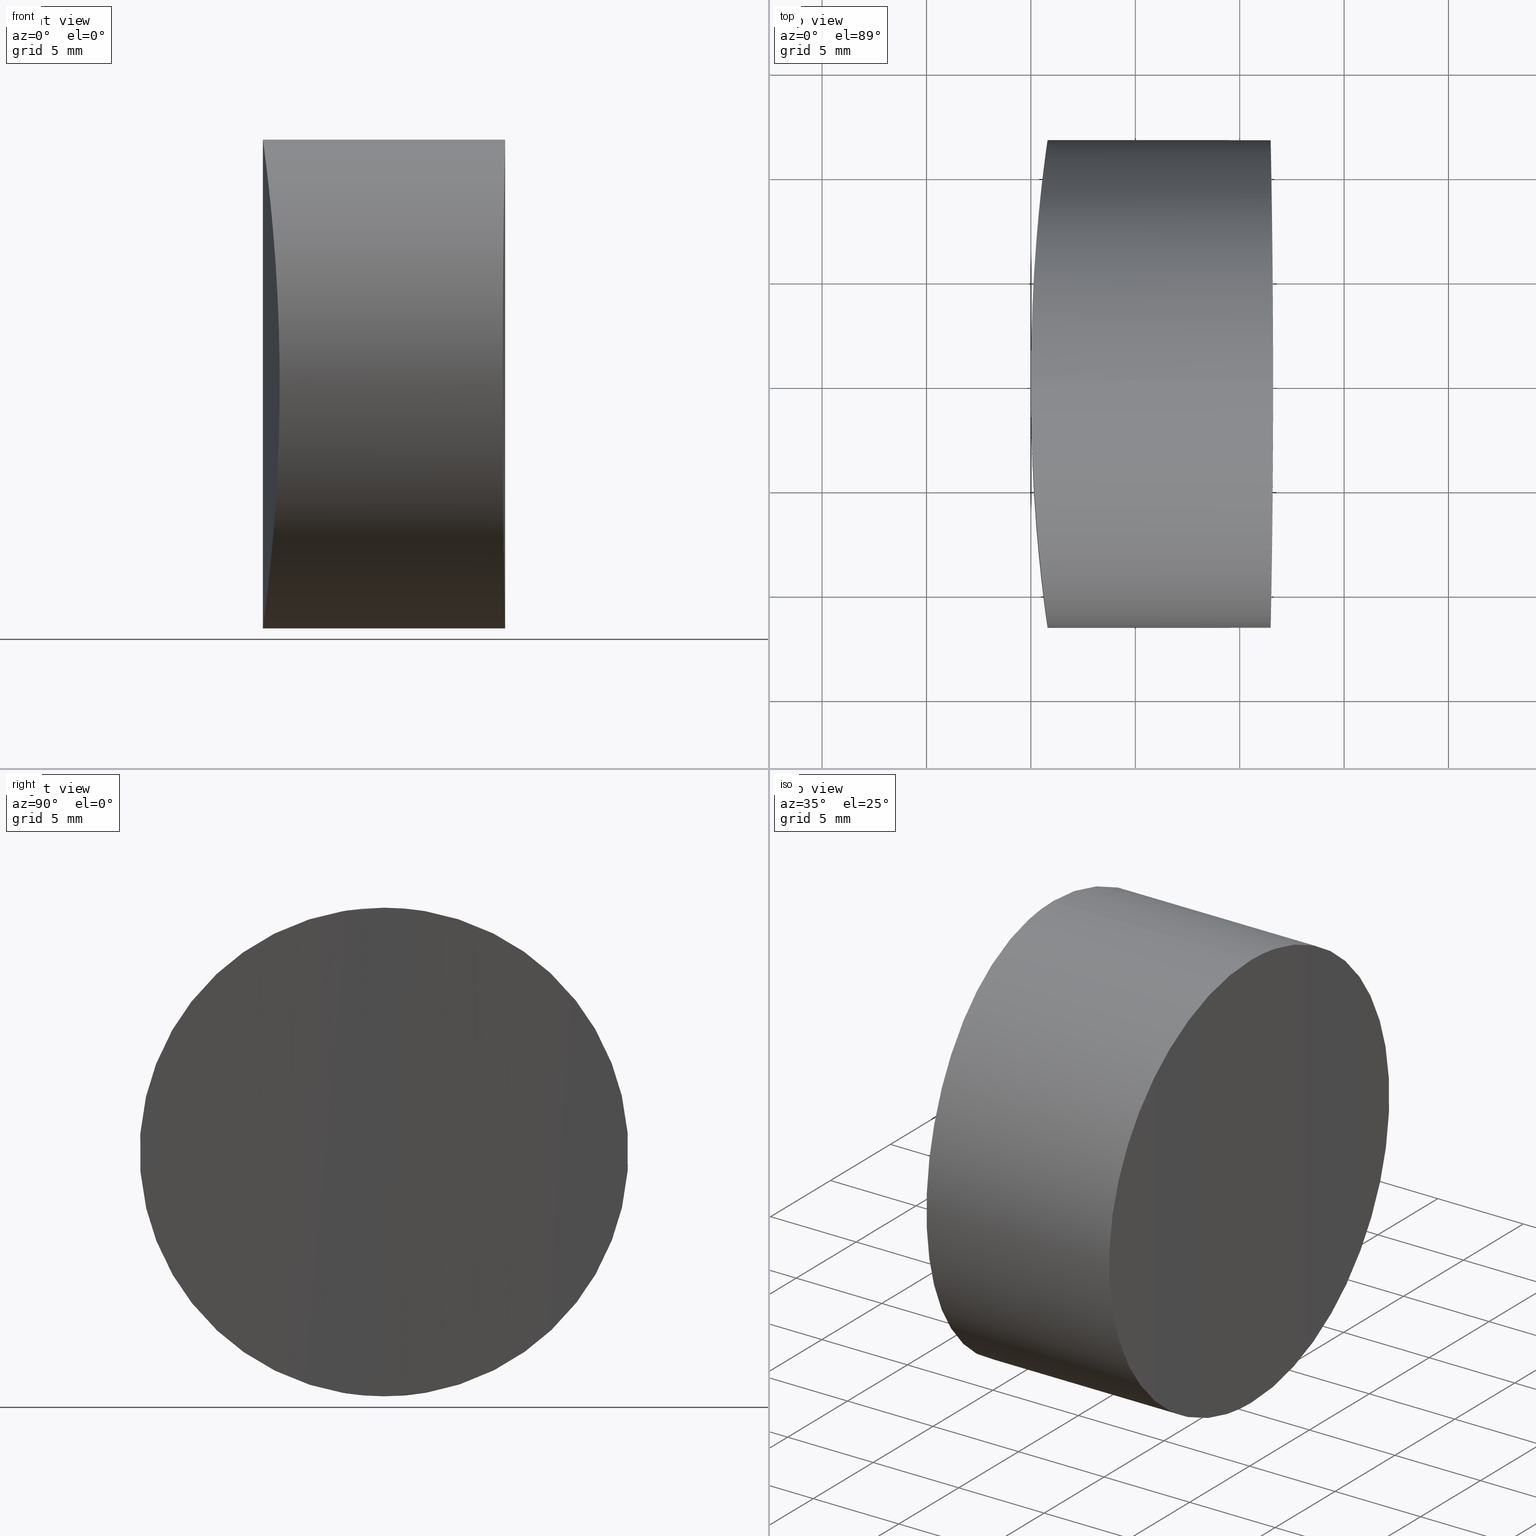
[diagram: canonical four-view strip — front | top / right | iso, engineering-drawing reading convention]
A machine part, canonical four-view strip (front | top / right | iso — engineering-drawing reading convention). The complete STEP part file that produces these views, byte-faithful:
ISO-10303-21;
HEADER;
FILE_DESCRIPTION (( 'STEP AP203' ),
    '1' );
FILE_NAME ('159018.STEP',
    '2024-12-10T03:13:30',
    ( '' ),
    ( '' ),
    'SwSTEP 2.0',
    'SolidWorks 2020',
    '' );
FILE_SCHEMA (( 'CONFIG_CONTROL_DESIGN' ));
ENDSEC;

DATA;
#1 = CARTESIAN_POINT ( 'NONE',  ( 11.48889508006092974, 11.30908264685334608, 14.72356528603690506 ) ) ;
#2 = CARTESIAN_POINT ( 'NONE',  ( 0.2969157019140344356, 7.122642959282647013, 20.99010349374455231 ) ) ;
#3 = PERSON ( 'δָ��', 'δָ��', 'δָ��', ('δָ��'), ('δָ��'), ('δָ��') ) ;
#4 = CARTESIAN_POINT ( 'NONE',  ( 11.54834514430092796, 7.716685844223316160, 2.897082641097291855 ) ) ;
#5 = AXIS2_PLACEMENT_3D ( 'NONE', #164, #112, #162 ) ;
#6 = CARTESIAN_POINT ( 'NONE',  ( 11.51078849114089842, -10.13498876620289124, 17.55819831774909190 ) ) ;
#7 = CARTESIAN_POINT ( 'NONE',  ( 11.59217540216426556, 3.023563350963979435, 0.3909168317189865016 ) ) ;
#8 = CALENDAR_DATE ( 2024, 10, 12 ) ;
#9 = CARTESIAN_POINT ( 'NONE',  ( 11.57054675410441469, -5.857263409342077232, 21.85708417673437864 ) ) ;
#10 = CARTESIAN_POINT ( 'NONE',  ( 0.000000000000000000, 0.000000000000000000, 23.39999999999999858 ) ) ;
#11 = CC_DESIGN_APPROVAL ( #47, ( #76 ) ) ;
#12 = APPROVAL ( #41, 'δָ��' ) ;
#13 = B_SPLINE_CURVE_WITH_KNOTS ( 'NONE', 3,
 ( #152, #341, #123, #171, #315, #59, #195, #25, #268, #169, #2, #239, #119, #144, #87, #228, #55, #201, #126, #174, #51, #311, #81, #282, #23, #177, #203, #288, #167, #280, #284, #30, #199, #337, #148, #309, #370, #237, #344, #91, #208, #364, #114, #48, #21, #141, #256, #261, #361, #143 ),
 .UNSPECIFIED., .F., .F.,
 ( 4, 2, 2, 2, 2, 2, 2, 2, 2, 2, 2, 2, 2, 2, 2, 2, 2, 2, 2, 2, 2, 2, 2, 2, 4 ),
 ( 0.01829874001183548829, 0.02058606737075608165, 0.02172973105021637485, 0.02287339472967667153, 0.02516072208859726489, 0.02630438576805756157, 0.02744804944751785825, 0.02973537680643844813, 0.03087904048589874134, 0.03202270416535903108, 0.03316636784481932776, 0.03431003152427961056, 0.03659735888320020392, 0.03888468624212078339, 0.04002834992158108007, 0.04117201360104136287, 0.04345934095996194235, 0.04460300463942222515, 0.04574666831888250795, 0.04803399567780308743, 0.04917765935726337023, 0.05032132303672366691, 0.05146498671618394971, 0.05260865039564424639, 0.05489597775456481199 ),
 .UNSPECIFIED. ) ;
#14 = CARTESIAN_POINT ( 'NONE',  ( -4.982711311605177194E-31, -5.239318916970031671E-46, -1.734723475976806306E-15 ) ) ;
#15 = VECTOR ( 'NONE', #63, 1000.000000000000000 ) ;
#16 = CC_DESIGN_PERSON_AND_ORGANIZATION_ASSIGNMENT ( #276, #179, ( #19 ) ) ;
#17 = DIRECTION ( 'NONE',  ( -1.000000000000000000, 0.000000000000000000, 0.000000000000000000 ) ) ;
#18 = ORIENTED_EDGE ( 'NONE', *, *, #196, .T. ) ;
#19 = PRODUCT_DEFINITION_FORMATION_WITH_SPECIFIED_SOURCE ( '�κ�', '', #105, .NOT_KNOWN. ) ;
#20 = FACE_OUTER_BOUND ( 'NONE', #188, .T. ) ;
#21 = CARTESIAN_POINT ( 'NONE',  ( 0.08287150945349634756, 3.779788279490086111, 0.6207537063316417303 ) ) ;
#22 = CARTESIAN_POINT ( 'NONE',  ( 11.60000000000016485, -7.957199002382834224E-15, 23.39999999999999858 ) ) ;
#23 = CARTESIAN_POINT ( 'NONE',  ( 0.8049714576929901666, 11.69997624845013462, 12.47382822473159258 ) ) ;
#24 = DIRECTION ( 'NONE',  ( -0.000000000000000000, -0.000000000000000000, -1.000000000000000000 ) ) ;
#25 = CARTESIAN_POINT ( 'NONE',  ( 0.1547565747887404419, 5.188473559564548587, 22.21460794716410803 ) ) ;
#26 =( GEOMETRIC_REPRESENTATION_CONTEXT ( 3 ) GLOBAL_UNCERTAINTY_ASSIGNED_CONTEXT ( ( #240 ) ) GLOBAL_UNIT_ASSIGNED_CONTEXT ( ( #331, #138, #191 ) ) REPRESENTATION_CONTEXT ( 'NONE', 'WORKASPACE' ) );
#27 = CARTESIAN_POINT ( 'NONE',  ( 11.55978960286003598, 6.810762556803639178, 2.178997594803219418 ) ) ;
#28 = CARTESIAN_POINT ( 'NONE',  ( 6.324512672832170006E-17, -0.7735007242164915198, -1.807003620809191543E-15 ) ) ;
#29 = PERSON_AND_ORGANIZATION ( #3, #252 ) ;
#30 = CARTESIAN_POINT ( 'NONE',  ( 0.6490255061940828352, 10.51469365711987791, 6.511697419970485790 ) ) ;
#31 = CARTESIAN_POINT ( 'NONE',  ( 11.55602995389305931, 7.120521181086075124, 2.408241686536841009 ) ) ;
#32 = CARTESIAN_POINT ( 'NONE',  ( 11.59392975387197566, 2.670271077491099820, 23.09772525857131953 ) ) ;
#33 = PERSON_AND_ORGANIZATION_ROLE ( 'design_supplier' ) ;
#34 = CARTESIAN_POINT ( 'NONE',  ( 11.59844573082671104, 1.532171443256347354, 0.07576365607338235442 ) ) ;
#35 = PERSON_AND_ORGANIZATION ( #3, #252 ) ;
#36 = CARTESIAN_POINT ( 'NONE',  ( 11.54445707153993794, -8.000400450507958894, 20.24570475478216736 ) ) ;
#37 = CARTESIAN_POINT ( 'NONE',  ( 11.60000000000020215, 0.7725389205760190281, -1.680513367352543706E-15 ) ) ;
#38 = DIRECTION ( 'NONE',  ( 1.000000000000000000, 0.000000000000000000, 0.000000000000000000 ) ) ;
#39 = CARTESIAN_POINT ( 'NONE',  ( 11.59844573082683539, -1.532171443256364229, 23.32423634392661427 ) ) ;
#40 = CARTESIAN_POINT ( 'NONE',  ( 11.57675890506411598, 5.183307414112395151, 22.19618068541164746 ) ) ;
#41 = APPROVAL_STATUS ( 'not_yet_approved' ) ;
#42 = CARTESIAN_POINT ( 'NONE',  ( 11.58784721816379459, -3.758206579550017690, 22.78662170139381971 ) ) ;
#43 = APPROVAL_PERSON_ORGANIZATION ( #271, #12, #102 ) ;
#44 = CARTESIAN_POINT ( 'NONE',  ( 0.6046922169477022546, -10.15550277636757137, 17.55996626465684685 ) ) ;
#45 = CYLINDRICAL_SURFACE ( 'NONE', #5, 11.70000000000000107 ) ;
#46 = VERTEX_POINT ( 'NONE', #234 ) ;
#47 = APPROVAL ( #264, 'δָ��' ) ;
#48 = CARTESIAN_POINT ( 'NONE',  ( 0.09957637364652298373, 4.138555815599445964, 0.7497807550455877212 ) ) ;
#49 = CC_DESIGN_SECURITY_CLASSIFICATION ( #76, ( #19 ) ) ;
#50 = FACE_OUTER_BOUND ( 'NONE', #163, .T. ) ;
#51 = CARTESIAN_POINT ( 'NONE',  ( 0.7213862518307621041, 11.07918525432890000, 15.47996509136043208 ) ) ;
#52 = CARTESIAN_POINT ( 'NONE',  ( 0.09899385815515494846, -4.126732457966788559, 0.7452340947286396622 ) ) ;
#53 = ORIENTED_EDGE ( 'NONE', *, *, #277, .F. ) ;
#54 = CARTESIAN_POINT ( 'NONE',  ( 0.01049551717967118700, -1.533902604541913295, 0.07594905271450159978 ) ) ;
#55 = CARTESIAN_POINT ( 'NONE',  ( 0.6029734264882017358, 10.13378123580967127, 17.56026148705359091 ) ) ;
#56 = CARTESIAN_POINT ( 'NONE',  ( 11.53661802630480082, 8.545704692924593004, 19.70040051057739916 ) ) ;
#57 = CARTESIAN_POINT ( 'NONE',  ( 0.3488080069896614677, -7.717827117987394736, 2.898112867211508181 ) ) ;
#58 = APPROVAL_STATUS ( 'not_yet_approved' ) ;
#59 = CARTESIAN_POINT ( 'NONE',  ( 0.08205682032936004178, 3.761488649776796755, 22.78551771964568928 ) ) ;
#60 = DESIGN_CONTEXT ( 'detailed design', #225, 'design' ) ;
#61 = CARTESIAN_POINT ( 'NONE',  ( 11.56679909336539502, 6.190252330602985076, 21.63572018492828875 ) ) ;
#62 = APPROVAL_ROLE ( '' ) ;
#63 = DIRECTION ( 'NONE',  ( -1.000000000000000000, 0.000000000000000000, 0.000000000000000000 ) ) ;
#64 = CARTESIAN_POINT ( 'NONE',  ( 11.60000000000021991, -0.7725384134044680495, -2.026102809832286805E-15 ) ) ;
#65 = PRODUCT_RELATED_PRODUCT_CATEGORY ( 'detail', '', ( #105 ) ) ;
#66 = CARTESIAN_POINT ( 'NONE',  ( 0.000000000000000000, 0.000000000000000000, 0.000000000000000000 ) ) ;
#67 = CARTESIAN_POINT ( 'NONE',  ( 11.48900865272862504, -11.30330480742386889, 14.74492850539805389 ) ) ;
#68 = CARTESIAN_POINT ( 'NONE',  ( 11.59844487777826494, -1.536650718441863628, 0.07577274146138250621 ) ) ;
#69 = CARTESIAN_POINT ( 'NONE',  ( 11.58533878050003274, -4.123348766008423816, 22.65604233339305296 ) ) ;
#70 = CARTESIAN_POINT ( 'NONE',  ( 11.58772550200146689, -3.776659304196815281, 0.6196961425283916691 ) ) ;
#71 = EDGE_CURVE ( 'NONE', #107, #313, #13, .T. ) ;
#72 = ORIENTED_EDGE ( 'NONE', *, *, #368, .F. ) ;
#73 = VECTOR ( 'NONE', #109, 1000.000000000000000 ) ;
#74 = APPROVAL_DATE_TIME ( #108, #47 ) ;
#75 = PRODUCT_DEFINITION_SHAPE ( 'NONE', 'NONE',  #247 ) ;
#76 = SECURITY_CLASSIFICATION ( '', '', #95 ) ;
#77 = CARTESIAN_POINT ( 'NONE',  ( 23.39999999999999858, -6.524362247380430940E-15, -1.734723475976807094E-15 ) ) ;
#78 = CARTESIAN_POINT ( 'NONE',  ( 0.7051499728978932735, -10.95475100229012178, 15.82677094144197305 ) ) ;
#79 = APPROVAL ( #58, 'δָ��' ) ;
#80 = DIRECTION ( 'NONE',  ( 0.000000000000000000, 0.000000000000000000, 1.000000000000000000 ) ) ;
#81 = CARTESIAN_POINT ( 'NONE',  ( 0.7636247004124844251, 11.39717575466077371, 14.37264079183626286 ) ) ;
#82 = CYLINDRICAL_SURFACE ( 'NONE', #193, 85.43000000000000682 ) ;
#83 = ORIENTED_EDGE ( 'NONE', *, *, #125, .F. ) ;
#84 = CARTESIAN_POINT ( 'NONE',  ( 0.7509120939584935650, -11.30263944536091358, 8.652569577926120914 ) ) ;
#85 = DIRECTION ( 'NONE',  ( -0.000000000000000000, -0.000000000000000000, -1.000000000000000000 ) ) ;
#86 = CARTESIAN_POINT ( 'NONE',  ( 0.7641371267976032611, -11.40097338447894693, 14.35577758986275221 ) ) ;
#87 = CARTESIAN_POINT ( 'NONE',  ( 0.5058729923670465256, 9.293165120871931251, 18.84967686803104314 ) ) ;
#88 = CARTESIAN_POINT ( 'NONE',  ( 11.48706353790698920, 11.40159643474238749, 14.35305552568090270 ) ) ;
#89 = FACE_OUTER_BOUND ( 'NONE', #333, .T. ) ;
#90 = COORDINATED_UNIVERSAL_TIME_OFFSET ( 8, 0, .AHEAD. ) ;
#91 = CARTESIAN_POINT ( 'NONE',  ( 0.2240722460501503310, 6.191715508670631252, 1.765193760489223829 ) ) ;
#92 = CC_DESIGN_APPROVAL ( #12, ( #19 ) ) ;
#93 = B_SPLINE_CURVE_WITH_KNOTS ( 'NONE', 3,
 ( #206, #28, #54, #338, #283, #146, #52, #257, #115, #263, #168, #57, #236, #310, #281, #176, #369, #290, #365, #231, #121, #84, #312, #170, #118, #233, #340, #86, #202, #314, #78, #303, #44, #304, #335, #332, #192, #194, #166, #111, #139, #278, #307, #254, #250, #249, #279, #165, #140, #255 ),
 .UNSPECIFIED., .F., .F.,
 ( 4, 2, 2, 2, 2, 2, 2, 2, 2, 2, 2, 2, 2, 2, 2, 2, 2, 2, 2, 2, 2, 2, 2, 2, 4 ),
 ( -0.01829849772484453546, -0.01601117036630202162, -0.01486750668703076643, -0.01372384300775950951, -0.01143651564921699913, -0.01029285196994574568, -0.009149188290674490492, -0.006861860932131988791, -0.005718197252860735338, -0.004574533573589481886, -0.003430869894318230168, -0.002287206215046980184, 1.211434955267209901E-07, 0.002287448502038033626, 0.003431112181309287079, 0.004574775860580544001, 0.006862103219123040498, 0.008005766898394290482, 0.009149430577665536996, 0.01143675793620802655, 0.01258042161547926960, 0.01372408529475051264, 0.01486774897402175916, 0.01601141265329300567, 0.01829874001183549176 ),
 .UNSPECIFIED. ) ;
#94 = CARTESIAN_POINT ( 'NONE',  ( 11.60000000000021103, -6.524362247379985233E-15, -1.754205247193224053E-15 ) ) ;
#95 = SECURITY_CLASSIFICATION_LEVEL ( 'unclassified' ) ;
#96 = CARTESIAN_POINT ( 'NONE',  ( 11.55978960286017099, -6.810762556803656942, 21.22100240519678138 ) ) ;
#97 = ADVANCED_FACE ( 'NONE', ( #258 ), #232, .T. ) ;
#98 = CARTESIAN_POINT ( 'NONE',  ( 11.52504475694595243, 9.291758020152153463, 18.82052155672731431 ) ) ;
#99 = APPLICATION_PROTOCOL_DEFINITION ( 'international standard', 'config_control_design', 1994, #204 ) ;
#100 = CARTESIAN_POINT ( 'NONE',  ( 11.52511386058626996, -9.294110420469229084, 18.84846486460835635 ) ) ;
#101 = CARTESIAN_POINT ( 'NONE',  ( 11.50431392046848167, 10.49618125319995166, 6.516693726865961267 ) ) ;
#102 = APPROVAL_ROLE ( '' ) ;
#103 = CARTESIAN_POINT ( 'NONE',  ( 11.49322400905037433, -11.08662113127333093, 7.941791750861715293 ) ) ;
#104 = CARTESIAN_POINT ( 'NONE',  ( 11.55596090888334793, -7.148465281526961590, 2.405889921153676614 ) ) ;
#105 = PRODUCT ( '159018', '159018', '', ( #347 ) ) ;
#106 = CALENDAR_DATE ( 2024, 10, 12 ) ;
#107 = VERTEX_POINT ( 'NONE', #216 ) ;
#108 = DATE_AND_TIME ( #161, #346 ) ;
#109 = DIRECTION ( 'NONE',  ( -1.000000000000000000, 0.000000000000000000, 0.000000000000000000 ) ) ;
#110 = VERTEX_POINT ( 'NONE', #186 ) ;
#111 = CARTESIAN_POINT ( 'NONE',  ( 0.2240617271662432297, -6.191570528692841968, 21.63489624173244508 ) ) ;
#112 = DIRECTION ( 'NONE',  ( -1.000000000000000000, 0.000000000000000000, 0.000000000000000000 ) ) ;
#113 = CARTESIAN_POINT ( 'NONE',  ( 11.58772550200129103, 3.776659304196797962, 22.78030385747160480 ) ) ;
#114 = CARTESIAN_POINT ( 'NONE',  ( 0.1365834048133584833, 4.841686277704874364, 1.041997385077902072 ) ) ;
#115 = CARTESIAN_POINT ( 'NONE',  ( 0.1988347925168873209, -5.859980309517195174, 1.544504016557944226 ) ) ;
#116 = LOCAL_TIME ( 11, 13, 30.00000000000000000, #218 ) ;
#117 = EDGE_LOOP ( 'NONE', ( #72, #319, #221, #53 ) ) ;
#118 = CARTESIAN_POINT ( 'NONE',  ( 0.8049758647438547410, -11.70000812424418868, 10.92663245149455342 ) ) ;
#119 = CARTESIAN_POINT ( 'NONE',  ( 0.3750549743893149546, 8.000906440676526898, 20.24520791035130074 ) ) ;
#120 = CARTESIAN_POINT ( 'NONE',  ( 11.48106894899203745, 11.70000020100234828, 10.92746441085048303 ) ) ;
#121 = CARTESIAN_POINT ( 'NONE',  ( 0.7214022135711677386, -11.07930720252659995, 7.920391221137811577 ) ) ;
#122 = PERSON_AND_ORGANIZATION ( #3, #252 ) ;
#123 = CARTESIAN_POINT ( 'NONE',  ( 0.01049497237357753694, 1.533863103208438883, 23.32405485431203473 ) ) ;
#124 = CARTESIAN_POINT ( 'NONE',  ( 11.51052687668431496, -10.15708367604227114, 5.842735755078348525 ) ) ;
#125 = EDGE_CURVE ( 'NONE', #46, #107, #295, .T. ) ;
#126 = CARTESIAN_POINT ( 'NONE',  ( 0.6673036899622041274, 10.65795045036725064, 16.54179947320250577 ) ) ;
#127 = CARTESIAN_POINT ( 'NONE',  ( 11.48714038383670832, 11.39772575531671706, 9.029731025579263104 ) ) ;
#128 = CARTESIAN_POINT ( 'NONE',  ( 23.39999999999999858, -7.957199002382834224E-15, 23.39999999999999858 ) ) ;
#129 = CARTESIAN_POINT ( 'NONE',  ( 11.58533878049994748, 4.123348766008413158, 0.7439576666069475097 ) ) ;
#130 = APPLICATION_PROTOCOL_DEFINITION ( 'international standard', 'config_control_design', 1994, #225 ) ;
#131 = CARTESIAN_POINT ( 'NONE',  ( 11.48106895716592035, -11.69999979899685627, 10.92745832252790272 ) ) ;
#132 = CARTESIAN_POINT ( 'NONE',  ( 11.57707555386763509, 5.185535602715203751, 1.183931573922345493 ) ) ;
#133 = PERSON_AND_ORGANIZATION_ROLE ( 'classification_officer' ) ;
#134 = B_SPLINE_CURVE_WITH_KNOTS ( 'NONE', 3,
 ( #94, #37, #34, #175, #7, #285, #129, #132, #243, #27, #31, #4, #246, #352, #184, #217, #153, #101, #327, #145, #262, #127, #367, #120, #149, #235, #88, #1, #238, #289, #241, #349, #205, #98, #209, #56, #320, #299, #61, #178, #40, #317, #113, #172, #32, #142, #227, #22 ),
 .UNSPECIFIED., .F., .F.,
 ( 4, 2, 2, 2, 2, 2, 2, 2, 2, 1, 2, 2, 2, 2, 2, 2, 2, 2, 2, 2, 2, 1, 2, 2, 4 ),
 ( 0.03655547232071186536, 0.03884019084067336786, 0.03998255010065411563, 0.04112490936063486341, 0.04340962788059635896, 0.04455198714057710674, 0.04569434640055786145, 0.04797906492051936395, 0.04912142418050011172, 0.05026378344048086644, 0.05140614270046160728, 0.05254850196044236199, 0.05483322048040385754, 0.05711793900036535310, 0.05826029826034609393, 0.05940265752032684171, 0.06168737604028833033, 0.06282973530026907116, 0.06397209456024981200, 0.06625681308021127980, 0.06739917234019202064, 0.06854153160017276147, 0.06968389086015350231, 0.07082625012013424315, 0.07311096864009572482 ),
 .UNSPECIFIED. ) ;
#135 = CC_DESIGN_DATE_AND_TIME_ASSIGNMENT ( #354, #151, ( #247 ) ) ;
#136 = CC_DESIGN_APPROVAL ( #79, ( #247 ) ) ;
#137 = EDGE_CURVE ( 'NONE', #46, #110, #353, .T. ) ;
#138 =( NAMED_UNIT ( * ) PLANE_ANGLE_UNIT ( ) SI_UNIT ( $, .RADIAN. ) );
#139 = CARTESIAN_POINT ( 'NONE',  ( 0.2005532909834797373, -5.860068956771623760, 21.83389294845257922 ) ) ;
#140 = CARTESIAN_POINT ( 'NONE',  ( 6.431474111115942763E-15, -0.7734806364466176865, 23.39999999999999503 ) ) ;
#141 = CARTESIAN_POINT ( 'NONE',  ( 0.05359046850530976847, 3.047595204440369798, 0.3974046633790014882 ) ) ;
#142 = CARTESIAN_POINT ( 'NONE',  ( 11.59844487777823652, 1.536650718441836094, 23.32422725853861323 ) ) ;
#143 = CARTESIAN_POINT ( 'NONE',  ( -4.982711311605177194E-31, -5.239318916970031671E-46, -1.734723475976806306E-15 ) ) ;
#144 = CARTESIAN_POINT ( 'NONE',  ( 0.4536722884883934159, 8.809184831426966511, 19.43747962970603993 ) ) ;
#145 = CARTESIAN_POINT ( 'NONE',  ( 11.49334572321051695, 11.08030443022354206, 7.923342363135714272 ) ) ;
#146 = CARTESIAN_POINT ( 'NONE',  ( 0.08206096595699850782, -3.761583598946705909, 0.6145141402618543580 ) ) ;
#147 = CALENDAR_DATE ( 2024, 10, 12 ) ;
#148 = CARTESIAN_POINT ( 'NONE',  ( 0.5062832646798305358, 9.290181178225719094, 4.577457851061286220 ) ) ;
#149 = CARTESIAN_POINT ( 'NONE',  ( 11.48106895716569298, 11.69999979899684206, 12.47254167747210296 ) ) ;
#150 = EDGE_CURVE ( 'NONE', #107, #313, #159, .T. ) ;
#151 = DATE_TIME_ROLE ( 'creation_date' ) ;
#152 = CARTESIAN_POINT ( 'NONE',  ( 6.477406527599691417E-15, -9.629649721936179265E-32, 23.39999999999999858 ) ) ;
#153 = CARTESIAN_POINT ( 'NONE',  ( 11.51078849114081137, 10.13498876620287525, 5.841801682250903127 ) ) ;
#154 = COORDINATED_UNIVERSAL_TIME_OFFSET ( 8, 0, .AHEAD. ) ;
#155 = CARTESIAN_POINT ( 'NONE',  ( 11.55602995389319787, -7.120521181086087559, 20.99175831346316201 ) ) ;
#156 = DIRECTION ( 'NONE',  ( -0.000000000000000000, -0.000000000000000000, -1.000000000000000000 ) ) ;
#157 = CARTESIAN_POINT ( 'NONE',  ( 11.48106894899226837, -11.70000020100236604, 12.47253558914952443 ) ) ;
#158 = CC_DESIGN_PERSON_AND_ORGANIZATION_ASSIGNMENT ( #273, #323, ( #247 ) ) ;
#159 = LINE ( 'NONE', #10, #302 ) ;
#160 = AXIS2_PLACEMENT_3D ( 'NONE', #363, #24, #260 ) ;
#161 = CALENDAR_DATE ( 2024, 10, 12 ) ;
#162 = DIRECTION ( 'NONE',  ( 0.000000000000000000, 0.000000000000000000, 1.000000000000000000 ) ) ;
#163 = EDGE_LOOP ( 'NONE', ( #329, #251 ) ) ;
#164 = CARTESIAN_POINT ( 'NONE',  ( 23.39999999999999858, -7.957199002382834224E-15, 11.69999999999999751 ) ) ;
#165 = CARTESIAN_POINT ( 'NONE',  ( 0.01050068492176082190, -1.538213765297997471, 23.32404452752199830 ) ) ;
#166 = CARTESIAN_POINT ( 'NONE',  ( 0.2972844449586438120, -7.149537921247302918, 20.99327408913114823 ) ) ;
#167 = CARTESIAN_POINT ( 'NONE',  ( 0.7516812127859685555, 11.30839754101475414, 8.673838587824947766 ) ) ;
#168 = CARTESIAN_POINT ( 'NONE',  ( 0.2969290566159361044, -7.122802687381152964, 2.410018600765388985 ) ) ;
#169 = CARTESIAN_POINT ( 'NONE',  ( 0.2714898719666087312, 6.812822267638939167, 21.21952266560989031 ) ) ;
#170 = CARTESIAN_POINT ( 'NONE',  ( 0.7943724764860889964, -11.62405835420322830, 10.16188730965645703 ) ) ;
#171 = CARTESIAN_POINT ( 'NONE',  ( 0.04046653912735306141, 2.655634412062388705, 23.10100665241144213 ) ) ;
#172 = CARTESIAN_POINT ( 'NONE',  ( 11.59206182922821426, 3.044930455466280161, 23.00330427774332520 ) ) ;
#173 = APPROVAL_PERSON_ORGANIZATION ( #29, #47, #318 ) ;
#174 = CARTESIAN_POINT ( 'NONE',  ( 0.7045575859390839080, 10.95015987517195910, 15.83871098886616835 ) ) ;
#175 = CARTESIAN_POINT ( 'NONE',  ( 11.59400660487336943, 2.653053456161256207, 0.2984030795462930263 ) ) ;
#176 = CARTESIAN_POINT ( 'NONE',  ( 0.5793779865615192870, -9.934947642419222902, 5.508512017653744763 ) ) ;
#177 = CARTESIAN_POINT ( 'NONE',  ( 0.8049780238032095969, 11.70002374052222116, 10.92689017151186093 ) ) ;
#178 = CARTESIAN_POINT ( 'NONE',  ( 11.57028507770290915, 5.858199213134020589, 21.83498824415880435 ) ) ;
#179 = PERSON_AND_ORGANIZATION_ROLE ( 'creator' ) ;
#180 = CARTESIAN_POINT ( 'NONE',  ( 11.59400660487351331, -2.653053456161271306, 23.10159692045369795 ) ) ;
#181 = CARTESIAN_POINT ( 'NONE',  ( 11.57028507770301395, -5.858199213134033911, 1.565011755841196894 ) ) ;
#182 = CARTESIAN_POINT ( 'NONE',  ( 11.48714038383691616, -11.39772575531672949, 14.37026897442074080 ) ) ;
#183 = CLOSED_SHELL ( 'NONE', ( #330, #220, #270, #97, #362 ) ) ;
#184 = CARTESIAN_POINT ( 'NONE',  ( 11.52511386058609233, 9.294110420469221978, 4.551535135391644893 ) ) ;
#185 = CALENDAR_DATE ( 2024, 10, 12 ) ;
#186 = CARTESIAN_POINT ( 'NONE',  ( 11.60000000000021103, -6.524362247379985233E-15, -1.754205247193224053E-15 ) ) ;
#187 = DATE_TIME_ROLE ( 'classification_date' ) ;
#188 = EDGE_LOOP ( 'NONE', ( #265, #190, #358, #83 ) ) ;
#189 = CC_DESIGN_DATE_AND_TIME_ASSIGNMENT ( #328, #187, ( #76 ) ) ;
#190 = ORIENTED_EDGE ( 'NONE', *, *, #368, .T. ) ;
#191 =( NAMED_UNIT ( * ) SI_UNIT ( $, .STERADIAN. ) SOLID_ANGLE_UNIT ( ) );
#192 = CARTESIAN_POINT ( 'NONE',  ( 0.4280043386027260754, -8.545104744097541172, 19.70101677041236599 ) ) ;
#193 = AXIS2_PLACEMENT_3D ( 'NONE', #198, #343, #287 ) ;
#194 = CARTESIAN_POINT ( 'NONE',  ( 0.3493858909968753923, -7.737359295398966275, 20.50929105694526910 ) ) ;
#195 = CARTESIAN_POINT ( 'NONE',  ( 0.09898890592906516017, 4.126629428525878218, 22.65480438437129962 ) ) ;
#196 = EDGE_CURVE ( 'NONE', #110, #46, #134, .T. ) ;
#197 = LOCAL_TIME ( 11, 13, 30.00000000000000000, #297 ) ;
#198 = CARTESIAN_POINT ( 'NONE',  ( 85.43000000000000682, 0.000000000000000000, 23.39999999999999858 ) ) ;
#199 = CARTESIAN_POINT ( 'NONE',  ( 0.6047113014281770837, 10.15566192970567450, 5.840307184532918860 ) ) ;
#200 = CYLINDRICAL_SURFACE ( 'NONE', #160, 575.5610000000003765 ) ;
#201 = CARTESIAN_POINT ( 'NONE',  ( 0.6468776175183231780, 10.49476624397416202, 16.88614194910168465 ) ) ;
#202 = CARTESIAN_POINT ( 'NONE',  ( 0.7516674377665271134, -11.30829448984635910, 14.72654541169406883 ) ) ;
#203 = CARTESIAN_POINT ( 'NONE',  ( 0.7943820480363925629, 11.62409513395581051, 10.16643019811762549 ) ) ;
#204 = APPLICATION_CONTEXT ( 'configuration controlled 3d designs of mechanical parts and assemblies' ) ;
#205 = CARTESIAN_POINT ( 'NONE',  ( 11.52128487876344565, 9.521002054087153610, 18.51076304060774902 ) ) ;
#206 = CARTESIAN_POINT ( 'NONE',  ( -4.982711311605177194E-31, -5.239318916970031671E-46, -1.734723475976806306E-15 ) ) ;
#207 = AXIS2_PLACEMENT_3D ( 'NONE', #66, #350, #38 ) ;
#208 = CARTESIAN_POINT ( 'NONE',  ( 0.2005627636522730184, 5.860207124673682877, 1.566186558512552729 ) ) ;
#209 = CARTESIAN_POINT ( 'NONE',  ( 11.53272987515088488, 8.802917214510841859, 19.41668600238138964 ) ) ;
#210 = PERSON_AND_ORGANIZATION ( #3, #252 ) ;
#211 = CARTESIAN_POINT ( 'NONE',  ( 11.54834514430108250, -7.716685844223325041, 20.50291735890271028 ) ) ;
#212 = CARTESIAN_POINT ( 'NONE',  ( 11.52128487876362684, -9.521002054087160715, 4.889236959392238013 ) ) ;
#213 = CARTESIAN_POINT ( 'NONE',  ( 11.49334572321073189, -11.08030443022355804, 15.47665763686428342 ) ) ;
#214 = CARTESIAN_POINT ( 'NONE',  ( 11.56679909336551049, -6.190252330603004616, 1.764279815071704061 ) ) ;
#215 = DATE_AND_TIME ( #147, #116 ) ;
#216 = CARTESIAN_POINT ( 'NONE',  ( 6.477406527599691417E-15, -9.629649721936179265E-32, 23.39999999999999858 ) ) ;
#217 = CARTESIAN_POINT ( 'NONE',  ( 11.51427482001291658, 9.935720673282499860, 5.509748445369099024 ) ) ;
#218 = COORDINATED_UNIVERSAL_TIME_OFFSET ( 8, 0, .AHEAD. ) ;
#219 = ORIENTED_EDGE ( 'NONE', *, *, #137, .T. ) ;
#220 = ADVANCED_FACE ( 'NONE', ( #50 ), #82, .T. ) ;
#221 = ORIENTED_EDGE ( 'NONE', *, *, #125, .T. ) ;
#222 = LOCAL_TIME ( 11, 13, 30.00000000000000000, #90 ) ;
#223 = CARTESIAN_POINT ( 'NONE',  ( 23.39999999999999858, -7.957199002382834224E-15, 11.69999999999999751 ) ) ;
#224 = EDGE_LOOP ( 'NONE', ( #248, #292 ) ) ;
#225 = APPLICATION_CONTEXT ( 'configuration controlled 3d designs of mechanical parts and assemblies' ) ;
#226 = CYLINDRICAL_SURFACE ( 'NONE', #230, 11.70000000000000107 ) ;
#227 = CARTESIAN_POINT ( 'NONE',  ( 11.60000000000015952, 0.7725394277479098459, 23.39999999999999858 ) ) ;
#228 = CARTESIAN_POINT ( 'NONE',  ( 0.5793586852781129615, 9.934782834742931001, 17.89175171875934822 ) ) ;
#229 = APPROVAL_PERSON_ORGANIZATION ( #35, #79, #62 ) ;
#230 = AXIS2_PLACEMENT_3D ( 'NONE', #223, #17, #80 ) ;
#231 = CARTESIAN_POINT ( 'NONE',  ( 0.7045743629348640846, -10.95028959137527380, 7.561631314208023369 ) ) ;
#232 = CYLINDRICAL_SURFACE ( 'NONE', #334, 85.43000000000000682 ) ;
#233 = CARTESIAN_POINT ( 'NONE',  ( 0.8049736180985221923, -11.69999187446487277, 12.47361334652224230 ) ) ;
#234 = CARTESIAN_POINT ( 'NONE',  ( 11.60000000000016485, -7.957199002382834224E-15, 23.39999999999999858 ) ) ;
#235 = CARTESIAN_POINT ( 'NONE',  ( 11.48262356146029006, 11.62423600102109411, 13.23217392122137959 ) ) ;
#236 = CARTESIAN_POINT ( 'NONE',  ( 0.3750706504109370676, -8.001073129360680269, 3.154947741401982864 ) ) ;
#237 = CARTESIAN_POINT ( 'NONE',  ( 0.3494007985149610307, 7.737523480572631840, 2.890851370053572289 ) ) ;
#238 = CARTESIAN_POINT ( 'NONE',  ( 11.49322400905017361, 11.08662113127330784, 15.45820824913828773 ) ) ;
#239 = CARTESIAN_POINT ( 'NONE',  ( 0.3487930687747584635, 7.717662337551427498, 20.50203122542992062 ) ) ;
#240 = UNCERTAINTY_MEASURE_WITH_UNIT (LENGTH_MEASURE( 1.000000000000000082E-05 ), #331, 'distance_accuracy_value', 'NONE');
#241 = CARTESIAN_POINT ( 'NONE',  ( 11.50399728673268740, 10.51606786632243917, 16.88553669811393121 ) ) ;
#242 = CARTESIAN_POINT ( 'NONE',  ( 11.50431392046857404, -10.49618125319996409, 16.88330627313403198 ) ) ;
#243 = CARTESIAN_POINT ( 'NONE',  ( 11.57054675410430278, 5.857263409342060356, 1.542915823265611719 ) ) ;
#244 = APPROVAL_DATE_TIME ( #267, #79 ) ;
#245 = CARTESIAN_POINT ( 'NONE',  ( 11.48706353790727697, -11.40159643474240703, 9.046944474319101204 ) ) ;
#246 = CARTESIAN_POINT ( 'NONE',  ( 11.54445707153977985, 8.000400450507948236, 3.154295245217838328 ) ) ;
#247 = PRODUCT_DEFINITION ( 'δ֪', '', #19, #60 ) ;
#248 = ORIENTED_EDGE ( 'NONE', *, *, #150, .F. ) ;
#249 = CARTESIAN_POINT ( 'NONE',  ( 0.05358774859665910162, -3.047517999023455104, 23.00261582745045530 ) ) ;
#250 = CARTESIAN_POINT ( 'NONE',  ( 0.08286738555103337345, -3.779694348437172557, 22.77927800579522355 ) ) ;
#251 = ORIENTED_EDGE ( 'NONE', *, *, #150, .T. ) ;
#252 = ORGANIZATION ( 'δָ��', 'δָ��', '' ) ;
#253 = CC_DESIGN_PERSON_AND_ORGANIZATION_ASSIGNMENT ( #210, #133, ( #76 ) ) ;
#254 = CARTESIAN_POINT ( 'NONE',  ( 0.09957146157945057086, -4.138453883356742580, 22.65025742589863000 ) ) ;
#255 = CARTESIAN_POINT ( 'NONE',  ( 6.477406527599691417E-15, -9.629649721936179265E-32, 23.39999999999999858 ) ) ;
#256 = CARTESIAN_POINT ( 'NONE',  ( 0.04097134468042274574, 2.672397569551773433, 0.3027666835991951744 ) ) ;
#257 = CARTESIAN_POINT ( 'NONE',  ( 0.1547640502430634724, -5.188598418656058975, 1.185452281450739109 ) ) ;
#258 = FACE_OUTER_BOUND ( 'NONE', #224, .T. ) ;
#259 = CC_DESIGN_PERSON_AND_ORGANIZATION_ASSIGNMENT ( #122, #33, ( #19 ) ) ;
#260 = DIRECTION ( 'NONE',  ( -1.000000000000000000, 0.000000000000000000, 0.000000000000000000 ) ) ;
#261 = CARTESIAN_POINT ( 'NONE',  ( 0.01050123026857611823, 1.538253491071569945, 0.07595937936825115921 ) ) ;
#262 = CARTESIAN_POINT ( 'NONE',  ( 11.48900865272839944, 11.30330480742384935, 8.655071494601953574 ) ) ;
#263 = CARTESIAN_POINT ( 'NONE',  ( 0.2715021646117392606, -6.812976176640775705, 2.180587066896687798 ) ) ;
#264 = APPROVAL_STATUS ( 'not_yet_approved' ) ;
#265 = ORIENTED_EDGE ( 'NONE', *, *, #196, .F. ) ;
#266 = CARTESIAN_POINT ( 'NONE',  ( 11.59392975387202540, -2.670271077491120693, 0.3022747414286875989 ) ) ;
#267 = DATE_AND_TIME ( #185, #286 ) ;
#268 = CARTESIAN_POINT ( 'NONE',  ( 0.1988254092468248746, 5.859842641894229764, 21.85557385568280253 ) ) ;
#269 = CARTESIAN_POINT ( 'NONE',  ( 11.59206182922837414, -3.044930455466297925, 0.3966957222566825370 ) ) ;
#270 = ADVANCED_FACE ( 'NONE', ( #89 ), #200, .T. ) ;
#271 = PERSON_AND_ORGANIZATION ( #3, #252 ) ;
#272 = CARTESIAN_POINT ( 'NONE',  ( 11.51427482001311020, -9.935720673282519400, 17.89025155463089689 ) ) ;
#273 = PERSON_AND_ORGANIZATION ( #3, #252 ) ;
#274 = CARTESIAN_POINT ( 'NONE',  ( 11.48262356146057606, -11.62423600102111010, 10.16782607877861899 ) ) ;
#275 = CARTESIAN_POINT ( 'NONE',  ( 11.60000000000021103, -6.524362247379985233E-15, -1.754205247193224053E-15 ) ) ;
#276 = PERSON_AND_ORGANIZATION ( #3, #252 ) ;
#277 = EDGE_CURVE ( 'NONE', #313, #107, #93, .T. ) ;
#278 = CARTESIAN_POINT ( 'NONE',  ( 0.1568789116780656412, -5.185924638826756805, 22.19487399206035860 ) ) ;
#279 = CARTESIAN_POINT ( 'NONE',  ( 0.04096924344706875942, -2.672329070877792478, 23.09724903335593638 ) ) ;
#280 = CARTESIAN_POINT ( 'NONE',  ( 0.7222247208508439931, 11.08559131629162486, 7.938727209264735407 ) ) ;
#281 = CARTESIAN_POINT ( 'NONE',  ( 0.5058916430108222340, -9.293335389968666149, 4.550541999413332483 ) ) ;
#282 = CARTESIAN_POINT ( 'NONE',  ( 0.7943643626023159099, 11.62399958992519977, 13.23854784542999141 ) ) ;
#283 = CARTESIAN_POINT ( 'NONE',  ( 0.05283304163181525015, -3.026478265824779079, 0.3916872511939496482 ) ) ;
#284 = CARTESIAN_POINT ( 'NONE',  ( 0.7051668809169641117, 10.95488168120236061, 7.573574919847533948 ) ) ;
#285 = CARTESIAN_POINT ( 'NONE',  ( 11.58784721816372887, 3.758206579550010140, 0.6133782986061770970 ) ) ;
#286 = LOCAL_TIME ( 11, 13, 30.00000000000000000, #154 ) ;
#287 = DIRECTION ( 'NONE',  ( -1.000000000000000000, 0.000000000000000000, 0.000000000000000000 ) ) ;
#288 = CARTESIAN_POINT ( 'NONE',  ( 0.7641495962156452659, 11.40106590861170588, 9.044618266121235095 ) ) ;
#289 = CARTESIAN_POINT ( 'NONE',  ( 11.49573285331429950, 10.95604175496005084, 15.82335029044564578 ) ) ;
#290 = CARTESIAN_POINT ( 'NONE',  ( 0.6468961291046688711, -10.49491570026977705, 6.514159846023001244 ) ) ;
#291 = PERSON_AND_ORGANIZATION_ROLE ( 'design_owner' ) ;
#292 = ORIENTED_EDGE ( 'NONE', *, *, #71, .T. ) ;
#293 = CARTESIAN_POINT ( 'NONE',  ( 11.53272987515105363, -8.802917214510863175, 3.983313997618600943 ) ) ;
#294 = PERSON_AND_ORGANIZATION ( #3, #252 ) ;
#295 = LINE ( 'NONE', #128, #15 ) ;
#296 = CARTESIAN_POINT ( 'NONE',  ( 11.58277654773670839, -4.494090578307911699, 0.8774578990461150418 ) ) ;
#297 = COORDINATED_UNIVERSAL_TIME_OFFSET ( 8, 0, .AHEAD. ) ;
#298 = CARTESIAN_POINT ( 'NONE',  ( 11.48262440123733974, -11.62422760463940818, 13.23664822005424568 ) ) ;
#299 = CARTESIAN_POINT ( 'NONE',  ( 11.55596090888321470, 7.148465281526949155, 20.99411007884631530 ) ) ;
#300 = CARTESIAN_POINT ( 'NONE',  ( 11.60000000000016485, -7.957199002382834224E-15, 23.39999999999999858 ) ) ;
#301 = SHAPE_DEFINITION_REPRESENTATION ( #75, #308 ) ;
#302 = VECTOR ( 'NONE', #156, 1000.000000000000000 ) ;
#303 = CARTESIAN_POINT ( 'NONE',  ( 0.6490068328121011421, -10.51454345816874003, 16.88860362405012339 ) ) ;
#304 = CARTESIAN_POINT ( 'NONE',  ( 0.5317622976944910151, -9.519436922708317539, 18.51294216844009100 ) ) ;
#305 = CC_DESIGN_PERSON_AND_ORGANIZATION_ASSIGNMENT ( #294, #291, ( #105 ) ) ;
#306 = MANIFOLD_SOLID_BREP ( '�г�-����1', #183 ) ;
#307 = CARTESIAN_POINT ( 'NONE',  ( 0.1365767840775509723, -4.841569084987638050, 22.35805549964017658 ) ) ;
#308 = ADVANCED_BREP_SHAPE_REPRESENTATION ( '159018', ( #306, #207 ), #26 ) ;
#309 = CARTESIAN_POINT ( 'NONE',  ( 0.4543086715633877781, 8.802102801002790855, 3.982418820106474744 ) ) ;
#310 = CARTESIAN_POINT ( 'NONE',  ( 0.4536899378769024826, -8.809355241206857201, 3.962712521276258393 ) ) ;
#311 = CARTESIAN_POINT ( 'NONE',  ( 0.7508981660442693995, 11.30253518600232532, 14.74781567041411279 ) ) ;
#312 = CARTESIAN_POINT ( 'NONE',  ( 0.7636374067821997125, -11.39727006629200723, 9.027760142963625611 ) ) ;
#313 = VERTEX_POINT ( 'NONE', #14 ) ;
#314 = CARTESIAN_POINT ( 'NONE',  ( 0.7222086597817900522, -11.08546868884451264, 15.46163333497350756 ) ) ;
#315 = CARTESIAN_POINT ( 'NONE',  ( 0.05283035595701477544, 3.026401400176914169, 23.00833296909785730 ) ) ;
#316 = CARTESIAN_POINT ( 'NONE',  ( 11.49573285331451089, -10.95604175496006860, 7.576649709554351908 ) ) ;
#317 = CARTESIAN_POINT ( 'NONE',  ( 11.58277667273960532, 4.494090510455714060, 22.52254193361578771 ) ) ;
#318 = APPROVAL_ROLE ( '' ) ;
#319 = ORIENTED_EDGE ( 'NONE', *, *, #137, .F. ) ;
#320 = CARTESIAN_POINT ( 'NONE',  ( 11.54824931310565539, 7.736891020478273262, 20.50979145329363718 ) ) ;
#321 = CARTESIAN_POINT ( 'NONE',  ( 11.53282578261331537, -8.809791657740039028, 19.43689081251580930 ) ) ;
#322 = CARTESIAN_POINT ( 'NONE',  ( 11.57675890506420835, -5.183307414112407585, 1.203819314588345124 ) ) ;
#323 = PERSON_AND_ORGANIZATION_ROLE ( 'creator' ) ;
#324 = CARTESIAN_POINT ( 'NONE',  ( 11.49829547754866965, -10.82254269306173988, 16.19408918329093794 ) ) ;
#325 = CARTESIAN_POINT ( 'NONE',  ( 11.52504475694612651, -9.291758020152174780, 4.579478443272673616 ) ) ;
#326 = CARTESIAN_POINT ( 'NONE',  ( 11.60000000000017195, -0.7725389205760324618, 23.39999999999999147 ) ) ;
#327 = CARTESIAN_POINT ( 'NONE',  ( 11.49829547754844583, 10.82254269306173278, 7.205910816709076627 ) ) ;
#328 = DATE_AND_TIME ( #106, #222 ) ;
#329 = ORIENTED_EDGE ( 'NONE', *, *, #277, .T. ) ;
#330 = ADVANCED_FACE ( 'NONE', ( #20 ), #45, .T. ) ;
#331 =( LENGTH_UNIT ( ) NAMED_UNIT ( * ) SI_UNIT ( .MILLI., .METRE. ) );
#332 = CARTESIAN_POINT ( 'NONE',  ( 0.4542909831996566061, -8.801932024367470575, 19.41777538431841776 ) ) ;
#333 = EDGE_LOOP ( 'NONE', ( #219, #18 ) ) ;
#334 = AXIS2_PLACEMENT_3D ( 'NONE', #339, #85, #366 ) ;
#335 = CARTESIAN_POINT ( 'NONE',  ( 0.5062645087274185718, -9.290009713551356185, 18.82276517698699081 ) ) ;
#336 = FACE_OUTER_BOUND ( 'NONE', #117, .T. ) ;
#337 = CARTESIAN_POINT ( 'NONE',  ( 0.5317811658340454439, 9.519605127981943582, 4.887292352681845919 ) ) ;
#338 = CARTESIAN_POINT ( 'NONE',  ( 0.04046860187852996393, -2.655702060082180349, 0.2990087722863913333 ) ) ;
#339 = CARTESIAN_POINT ( 'NONE',  ( 85.43000000000000682, 0.000000000000000000, 23.39999999999999858 ) ) ;
#340 = CARTESIAN_POINT ( 'NONE',  ( 0.7943740081462123959, -11.62403689245180161, 13.23400169640623147 ) ) ;
#341 = CARTESIAN_POINT ( 'NONE',  ( 6.487142998704987980E-15, 0.7734806365744752998, 23.40000000000000213 ) ) ;
#342 = CARTESIAN_POINT ( 'NONE',  ( 11.50399728673288813, -10.51606786632245516, 6.514463301886069146 ) ) ;
#343 = DIRECTION ( 'NONE',  ( -0.000000000000000000, -0.000000000000000000, -1.000000000000000000 ) ) ;
#344 = CARTESIAN_POINT ( 'NONE',  ( 0.2972976370947958413, 7.149695783425524809, 2.406845851262011671 ) ) ;
#345 = CARTESIAN_POINT ( 'NONE',  ( 11.53661802630506905, -8.545704692924607215, 3.699599489422589205 ) ) ;
#346 = LOCAL_TIME ( 11, 13, 30.00000000000000000, #359 ) ;
#347 = MECHANICAL_CONTEXT ( 'NONE', #204, 'mechanical' ) ;
#348 = CARTESIAN_POINT ( 'NONE',  ( 11.57707555386773990, -5.185535602715210857, 22.21606842607765131 ) ) ;
#349 = CARTESIAN_POINT ( 'NONE',  ( 11.51052687668412311, 10.15708367604225337, 17.55726424492163673 ) ) ;
#350 = DIRECTION ( 'NONE',  ( 0.000000000000000000, 0.000000000000000000, 1.000000000000000000 ) ) ;
#351 = CARTESIAN_POINT ( 'NONE',  ( 11.59217540216431885, -3.023563350963990537, 23.00908316828100197 ) ) ;
#352 = CARTESIAN_POINT ( 'NONE',  ( 11.53282578261314661, 8.809791657740028370, 3.963109187484196827 ) ) ;
#353 = B_SPLINE_CURVE_WITH_KNOTS ( 'NONE', 3,
 ( #300, #326, #39, #180, #351, #42, #69, #348, #9, #96, #155, #211, #36, #321, #100, #272, #6, #242, #324, #213, #67, #182, #298, #157, #131, #274, #245, #355, #103, #316, #342, #124, #212, #325, #293, #345, #356, #104, #214, #181, #322, #296, #70, #269, #266, #68, #64, #275 ),
 .UNSPECIFIED., .F., .F.,
 ( 4, 2, 2, 2, 2, 2, 2, 2, 2, 1, 2, 2, 2, 2, 2, 2, 2, 2, 2, 2, 2, 1, 2, 2, 4 ),
 ( 0.000000000000000000, 0.002284717020044506764, 0.003427075530066760363, 0.004569434040089013528, 0.006854151060133518991, 0.007996509570155766952, 0.009138868080178014913, 0.01142358510022250910, 0.01256594361024475186, 0.01370830212026699635, 0.01485066063028923911, 0.01599301914031148186, 0.01827773616035596391, 0.02056245318040045289, 0.02170481169042269912, 0.02284717020044494187, 0.02513188722048943086, 0.02627424573051167708, 0.02741660424053392331, 0.02970132126057841229, 0.03084367977060065505, 0.03198603828062290128, 0.03312839679064513709, 0.03427075530066737985, 0.03655547232071186536 ),
 .UNSPECIFIED. ) ;
#354 = DATE_AND_TIME ( #8, #197 ) ;
#355 = CARTESIAN_POINT ( 'NONE',  ( 11.48889508006113402, -11.30908264685336384, 8.676434713963097067 ) ) ;
#356 = CARTESIAN_POINT ( 'NONE',  ( 11.54824931310591118, -7.736891020478286585, 2.890208546706352966 ) ) ;
#357 = APPROVAL_DATE_TIME ( #215, #12 ) ;
#358 = ORIENTED_EDGE ( 'NONE', *, *, #71, .F. ) ;
#359 = COORDINATED_UNIVERSAL_TIME_OFFSET ( 8, 0, .AHEAD. ) ;
#360 = LINE ( 'NONE', #77, #73 ) ;
#361 = CARTESIAN_POINT ( 'NONE',  ( -8.470329472543003391E-17, 0.7735007243443302594, -1.819426770702237128E-15 ) ) ;
#362 = ADVANCED_FACE ( 'NONE', ( #336 ), #226, .T. ) ;
#363 = CARTESIAN_POINT ( 'NONE',  ( -563.9610000000000127, -5.703383201529799566E-12, 23.39999999999999858 ) ) ;
#364 = CARTESIAN_POINT ( 'NONE',  ( 0.1568864530318723194, 5.186049091022322699, 1.205187127134928371 ) ) ;
#365 = CARTESIAN_POINT ( 'NONE',  ( 0.6673217419372412529, -10.65809392138062961, 6.858515570865217903 ) ) ;
#366 = DIRECTION ( 'NONE',  ( -1.000000000000000000, 0.000000000000000000, 0.000000000000000000 ) ) ;
#367 = CARTESIAN_POINT ( 'NONE',  ( 11.48262440123712480, 11.62422760463938332, 10.16335177994575290 ) ) ;
#368 = EDGE_CURVE ( 'NONE', #110, #313, #360, .T. ) ;
#369 = CARTESIAN_POINT ( 'NONE',  ( 0.6029925411409801095, -10.13394114416854741, 5.840014458644363415 ) ) ;
#370 = CARTESIAN_POINT ( 'NONE',  ( 0.4280213862506574984, 8.545274382472280550, 3.699163916971684785 ) ) ;
ENDSEC;
END-ISO-10303-21;
